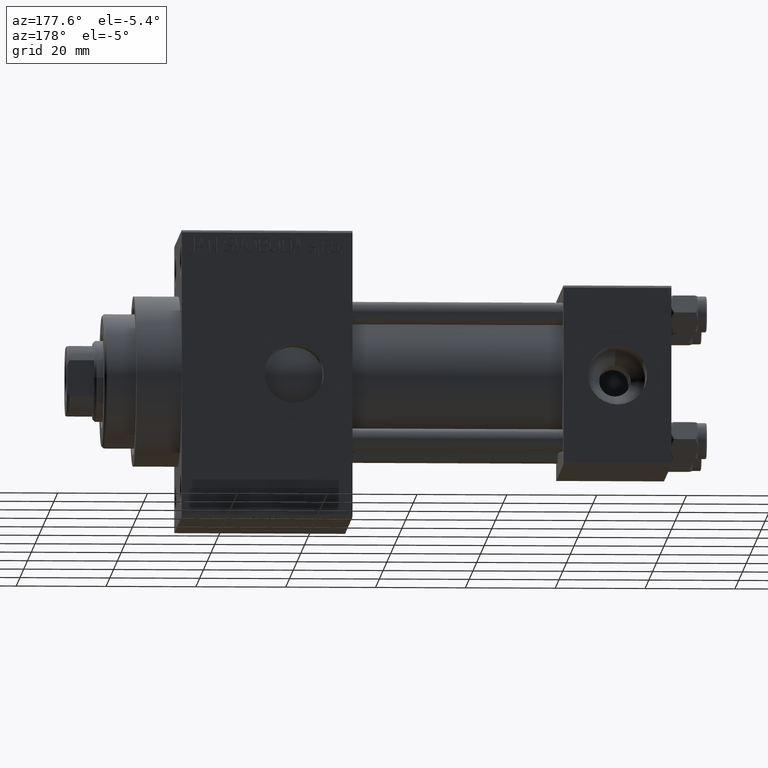
[diagram: clean part render]
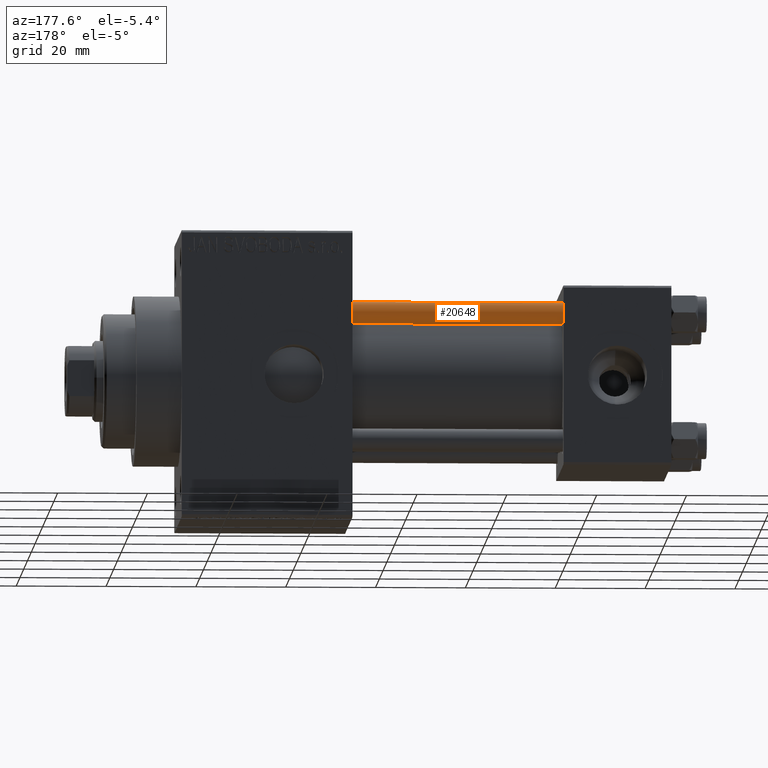
[diagram: same view with one face highlighted and labeled with its STEP entity id]
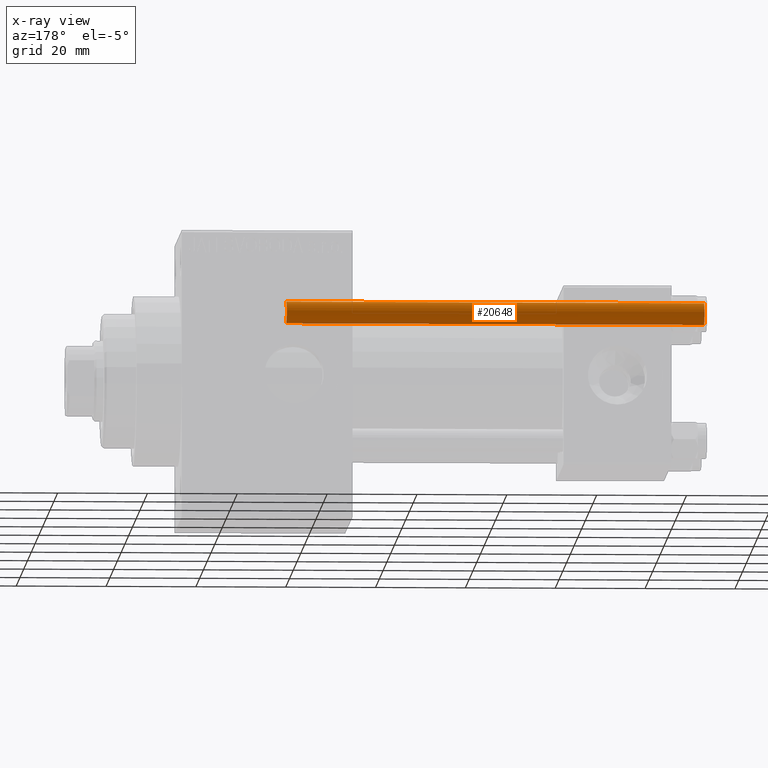
[diagram: x-ray of the same camera — body ghosted, the highlighted face saturated]
A machine part, auxiliary view. The second image highlights one B-rep face of the part: STEP entity #20648.
The next image is the same camera in x-ray: the body ghosted, the highlighted face saturated — about 0% of this face is hidden behind the body in this view.
In plain terms, the highlighted cylindrical surface (edge-blend (fillet) strip) has radius 2.5 mm, axis along (-1, -0, 0).
Its self-contained STEP definition (entity closure, byte-faithful):
#558 = CYLINDRICAL_SURFACE ( 'NONE', #1835, 2.500000000000000000 ) ;
#1835 = AXIS2_PLACEMENT_3D ( 'NONE', #23843, #45912, #38474 ) ;
#2219 = VERTEX_POINT ( 'NONE', #35120 ) ;
#3294 = CARTESIAN_POINT ( 'NONE',  ( 0.000000000000000000, 0.000000000000000000, 93.50000000000001421 ) ) ;
#4051 = EDGE_CURVE ( 'NONE', #30284, #8171, #31973, .T. ) ;
#5146 = ORIENTED_EDGE ( 'NONE', *, *, #40750, .T. ) ;
#8171 = VERTEX_POINT ( 'NONE', #23890 ) ;
#8541 = CARTESIAN_POINT ( 'NONE',  ( 0.000000000000000000, 0.000000000000000000, 0.5000000000000004441 ) ) ;
#9618 = CARTESIAN_POINT ( 'NONE',  ( -2.500000000000000000, 0.000000000000000000, 93.50000000000001421 ) ) ;
#11980 = VECTOR ( 'NONE', #28263, 1000.000000000000000 ) ;
#13136 = CARTESIAN_POINT ( 'NONE',  ( 2.500000000000000000, 3.061616997868383141E-16, 94.00000000000000000 ) ) ;
#15509 = AXIS2_PLACEMENT_3D ( 'NONE', #3294, #34024, #33528 ) ;
#19552 = EDGE_CURVE ( 'NONE', #35909, #2219, #41382, .T. ) ;
#20307 = AXIS2_PLACEMENT_3D ( 'NONE', #8541, #23654, #39008 ) ;
#20648 = ADVANCED_FACE ( 'NONE', ( #35006 ), #558, .T. ) ;
#22306 = VECTOR ( 'NONE', #37172, 1000.000000000000000 ) ;
#23654 = DIRECTION ( 'NONE',  ( -0.000000000000000000, -0.000000000000000000, 1.000000000000000000 ) ) ;
#23843 = CARTESIAN_POINT ( 'NONE',  ( 0.000000000000000000, 0.000000000000000000, 94.00000000000000000 ) ) ;
#23890 = CARTESIAN_POINT ( 'NONE',  ( 2.500000000000000000, 3.061616997868383141E-16, 0.5000000000000004441 ) ) ;
#24585 = ORIENTED_EDGE ( 'NONE', *, *, #39784, .T. ) ;
#25772 = CARTESIAN_POINT ( 'NONE',  ( -2.500000000000000000, 0.000000000000000000, 94.00000000000000000 ) ) ;
#25804 = CIRCLE ( 'NONE', #15509, 2.500000000000000000 ) ;
#26685 = CARTESIAN_POINT ( 'NONE',  ( 2.500000000000000000, 3.061616997868383141E-16, 93.50000000000001421 ) ) ;
#28263 = DIRECTION ( 'NONE',  ( -0.000000000000000000, -0.000000000000000000, -1.000000000000000000 ) ) ;
#30284 = VERTEX_POINT ( 'NONE', #26685 ) ;
#31973 = LINE ( 'NONE', #13136, #11980 ) ;
#33528 = DIRECTION ( 'NONE',  ( 1.000000000000000000, 0.000000000000000000, 0.000000000000000000 ) ) ;
#34024 = DIRECTION ( 'NONE',  ( 0.000000000000000000, 0.000000000000000000, -1.000000000000000000 ) ) ;
#35006 = FACE_OUTER_BOUND ( 'NONE', #44963, .T. ) ;
#35120 = CARTESIAN_POINT ( 'NONE',  ( -2.500000000000000000, 0.000000000000000000, 0.5000000000000004441 ) ) ;
#35254 = ORIENTED_EDGE ( 'NONE', *, *, #19552, .F. ) ;
#35909 = VERTEX_POINT ( 'NONE', #9618 ) ;
#37172 = DIRECTION ( 'NONE',  ( -0.000000000000000000, -0.000000000000000000, -1.000000000000000000 ) ) ;
#38474 = DIRECTION ( 'NONE',  ( -1.000000000000000000, 0.000000000000000000, 0.000000000000000000 ) ) ;
#38508 = CIRCLE ( 'NONE', #20307, 2.500000000000000000 ) ;
#39008 = DIRECTION ( 'NONE',  ( 1.000000000000000000, 0.000000000000000000, 0.000000000000000000 ) ) ;
#39784 = EDGE_CURVE ( 'NONE', #35909, #30284, #25804, .T. ) ;
#40750 = EDGE_CURVE ( 'NONE', #8171, #2219, #38508, .T. ) ;
#41382 = LINE ( 'NONE', #25772, #22306 ) ;
#43439 = ORIENTED_EDGE ( 'NONE', *, *, #4051, .T. ) ;
#44963 = EDGE_LOOP ( 'NONE', ( #24585, #43439, #5146, #35254 ) ) ;
#45912 = DIRECTION ( 'NONE',  ( -0.000000000000000000, -0.000000000000000000, -1.000000000000000000 ) ) ;